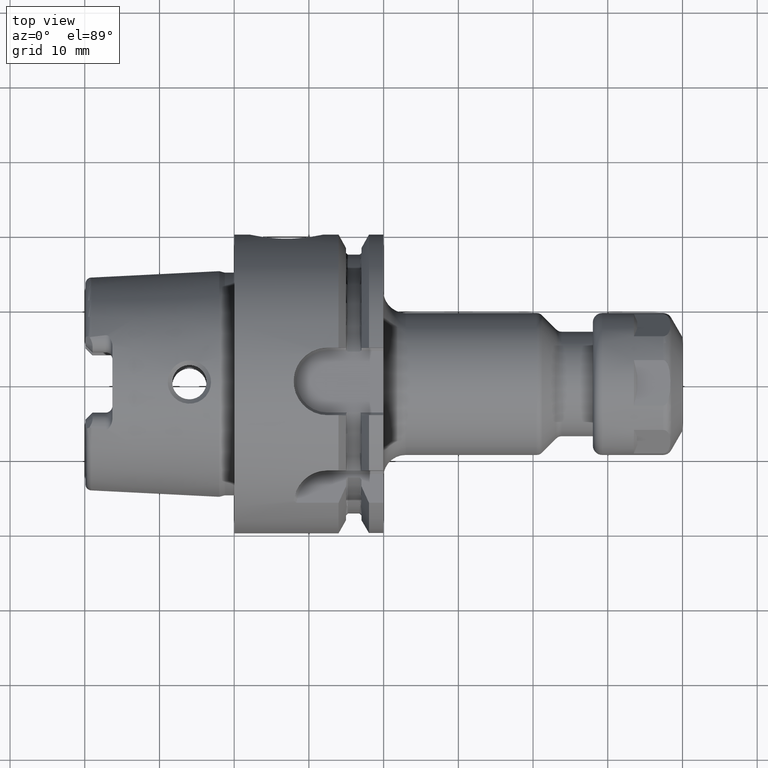
[diagram: clean part render]
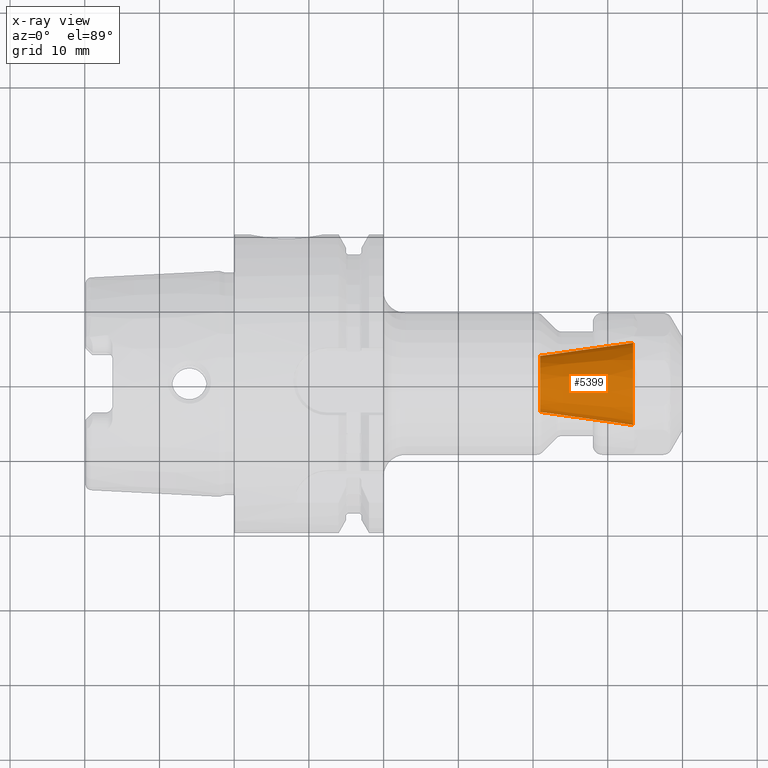
[diagram: x-ray — body ghosted, one internal face saturated and labeled with its STEP entity id]
A machine part, top view, then the same camera in x-ray: the body is ghosted and one INTERNAL B-rep face — a face not visible from any outside direction — is saturated and labeled: STEP entity #5399.
In plain terms, the highlighted conical surface has half-angle 8 deg.
Its self-contained STEP definition (entity closure, byte-faithful):
#1955=CARTESIAN_POINT('',(5.34E1,0.E0,0.E0));
#1956=DIRECTION('',(1.E0,0.E0,0.E0));
#1957=DIRECTION('',(0.E0,1.E0,0.E0));
#1958=AXIS2_PLACEMENT_3D('',#1955,#1956,#1957);
#1965=DIRECTION('',(-9.902680687416E-1,-1.391731009601E-1,0.E0));
#1966=VECTOR('',#1965,1.257426893507E1);
#1967=CARTESIAN_POINT('',(5.34E1,5.5E0,0.E0));
#1968=LINE('',#1967,#1966);
#1969=DIRECTION('',(-9.902680687416E-1,1.391731009601E-1,0.E0));
#1970=VECTOR('',#1969,1.257426893507E1);
#1971=CARTESIAN_POINT('',(5.34E1,-5.5E0,0.E0));
#1972=LINE('',#1971,#1970);
#1986=CARTESIAN_POINT('',(4.094810298583E1,0.E0,0.E0));
#1987=DIRECTION('',(1.E0,0.E0,0.E0));
#1988=DIRECTION('',(0.E0,1.E0,0.E0));
#1989=AXIS2_PLACEMENT_3D('',#1986,#1987,#1988);
#3208=CARTESIAN_POINT('',(4.094810298583E1,3.75E0,0.E0));
#3210=VERTEX_POINT('',#3208);
#3212=CARTESIAN_POINT('',(4.094810298583E1,-3.75E0,0.E0));
#3214=VERTEX_POINT('',#3212);
#3216=CARTESIAN_POINT('',(5.34E1,5.5E0,0.E0));
#3217=VERTEX_POINT('',#3216);
#3218=CARTESIAN_POINT('',(5.34E1,-5.5E0,0.E0));
#3219=VERTEX_POINT('',#3218);
#5385=CARTESIAN_POINT('',(4.717405149291E1,0.E0,0.E0));
#5386=DIRECTION('',(1.E0,0.E0,0.E0));
#5387=DIRECTION('',(0.E0,-1.E0,0.E0));
#5388=AXIS2_PLACEMENT_3D('',#5385,#5386,#5387);
#5389=CONICAL_SURFACE('',#5388,4.625E0,8.E0);
#5391=ORIENTED_EDGE('',*,*,#5390,.T.);
#5393=ORIENTED_EDGE('',*,*,#5392,.T.);
#5395=ORIENTED_EDGE('',*,*,#5394,.F.);
#5396=ORIENTED_EDGE('',*,*,#5378,.F.);
#5397=EDGE_LOOP('',(#5391,#5393,#5395,#5396));
#5398=FACE_OUTER_BOUND('',#5397,.F.);
#5399=ADVANCED_FACE('',(#5398),#5389,.F.);
#1959=CIRCLE('',#1958,5.5E0);
#1990=CIRCLE('',#1989,3.75E0);
#5378=EDGE_CURVE('',#3217,#3219,#1959,.T.);
#5390=EDGE_CURVE('',#3217,#3210,#1968,.T.);
#5392=EDGE_CURVE('',#3210,#3214,#1990,.T.);
#5394=EDGE_CURVE('',#3219,#3214,#1972,.T.);